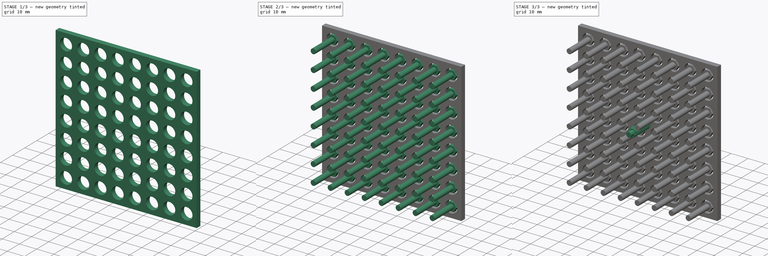
[diagram: build sequence overview — one tinted view per stage of 3, left to right]
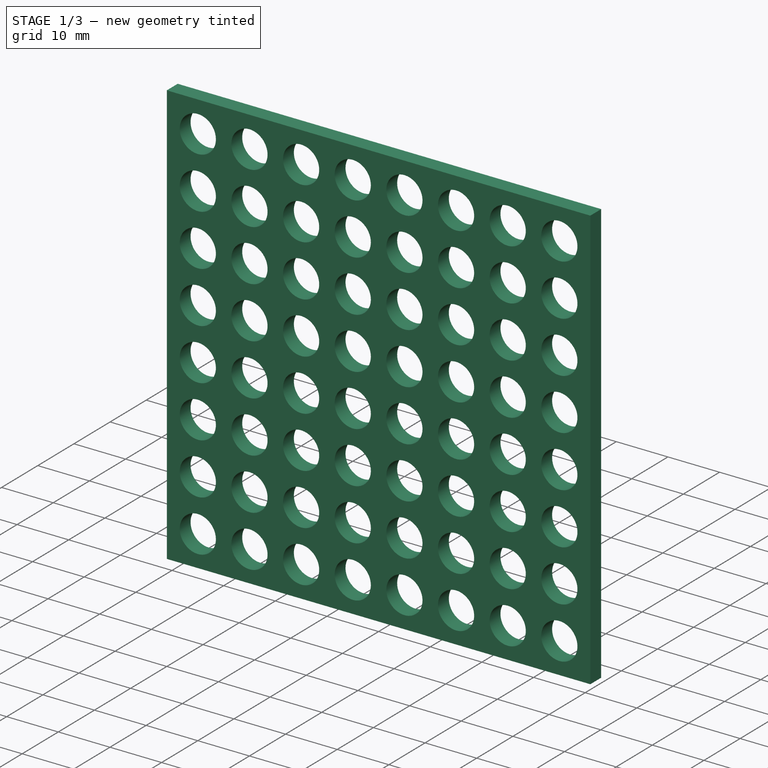
[diagram: stage 1 of 3 — iso view after this stage's code; geometry added in this stage tinted green]
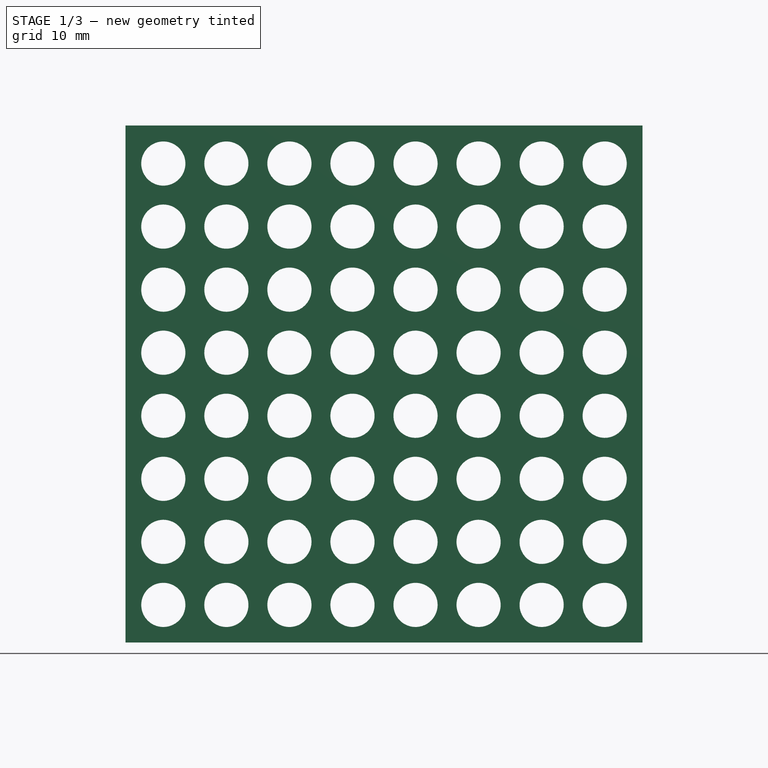
[diagram: stage 1 of 3 — front view after this stage's code; geometry added in this stage tinted green]
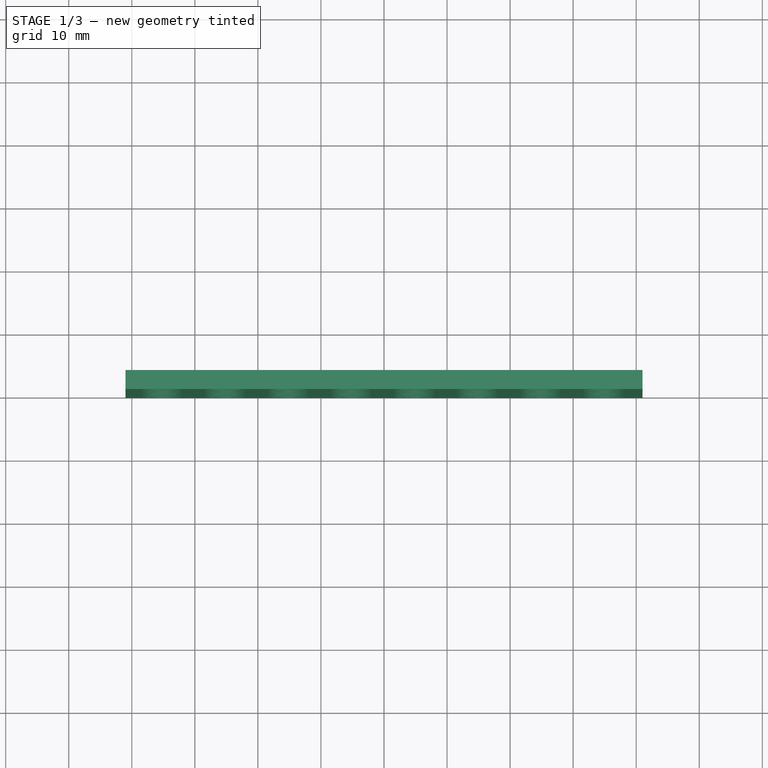
[diagram: stage 1 of 3 — top view after this stage's code; geometry added in this stage tinted green]
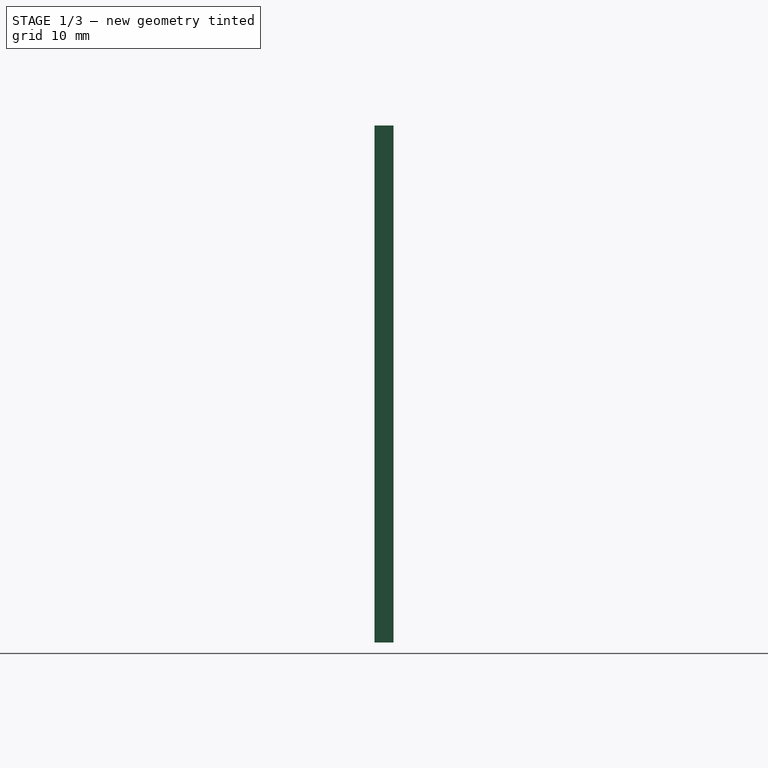
[diagram: stage 1 of 3 — right view after this stage's code; geometry added in this stage tinted green]
FCSTD DOCUMENT  (FreeCAD 0.17R13031 (Git))
Label: estructura
License: CreativeCommons Attribution-ShareAlike
LicenseURL: http://creativecommons.org/licenses/by-sa/4.0/
objects: Sketcher::SketchObject×5, PartDesign::Pad×3, PartDesign::Body×3, App::Part×2, Part::FeaturePython×2, PartDesign::LinearPattern×2, Spreadsheet::Sheet×1, Part::Helix×1, PartDesign::ShapeBinder×1, PartDesign::AdditivePipe×1, PartDesign::Pocket×1, PartDesign::MultiTransform×1
note: 25 computed .brp shape members not serialized (recipe doc carries the construction recipe); baked Part::Feature solids carry a one-line shape summary decoded from their .brp

FEATURE [Sketcher::SketchObject] Sketch003
  MapMode = 5
  Placement = pos=(0,0,0) rot=(1,0,0;1.5708rad)
  Support = -> [XZ_Plane004]
  expr: Constraints[11] = Spreadsheet.matriz_separacion * Spreadsheet.matriz_columnas + 2
  expr: Constraints[10] = Spreadsheet.matriz_separacion * Spreadsheet.matriz_filas + 2
  sketch-geometry (4):
    g0: LineSegment StartX=-41 StartY=41 StartZ=0 EndX=41 EndY=41 EndZ=0
    g1: LineSegment StartX=41 StartY=41 StartZ=0 EndX=41 EndY=-41 EndZ=0
    g2: LineSegment StartX=41 StartY=-41 StartZ=0 EndX=-41 EndY=-41 EndZ=0
    g3: LineSegment StartX=-41 StartY=-41 StartZ=0 EndX=-41 EndY=41 EndZ=0
  constraints (12):
    c: Coincident(g0,g1)
    c: Coincident(g1,g2)
    c: Coincident(g2,g3)
    c: Coincident(g3,g0)
    c: Horizontal(g0)
    c: Horizontal(g2)
    c: Vertical(g1)
    c: Vertical(g3)
    c: Symmetric(g0,g1,g-1)
    c: Symmetric(g0,g0,g-2)
    c: DistanceX(g0,g0) = 82
    c: DistanceY(g3,g3) = 82
FEATURE [PartDesign::Pad] Pad002
  Length = 3
  Length2 = 100
  Placement = pos=(0,0,0) rot=(1,0,0;1.5708rad)
  Profile = -> Sketch003
  Reversed = true
  Type = 0
  expr: Length = Spreadsheet.grosor1
FEATURE [Sketcher::SketchObject] Sketch004
  MapMode = 5
  Placement = pos=(0,0,0) rot=(1,0,0;1.5708rad)
  Support = -> [XZ_Plane004]
  expr: Constraints[1] = -(Spreadsheet.matriz_separacion * (Spreadsheet.matriz_filas - 1)) / 2
  expr: Constraints[0] = Spreadsheet.tornillo_diametro_cabeza / 2 + 1
  sketch-geometry (1):
    g0: Circle CenterX=-35 CenterY=34.963 CenterZ=0 NormalX=0 NormalY=0 NormalZ=1 AngleXU=0 Radius=3.5
  constraints (3):
    c: Radius(g0) = 3.5
    c: DistanceX(g0) = -35
    c: DistanceY(g0) = 34.963
FEATURE [PartDesign::Pocket] Pocket
  BaseFeature = -> Pad002
  Length = 3
  Placement = pos=(0,0,0) rot=(1,0,0;1.5708rad)
  Profile = -> Sketch004
  Type = 0
  expr: Length = Spreadsheet.grosor1
FEATURE [PartDesign::LinearPattern] LinearPattern
  Direction = -> Sketch004 [H_Axis]
  Length = 70
  Occurrences = 8
  Placement = pos=(0,0,0) rot=(1,0,0;1.5708rad)
  expr: Occurrences = Spreadsheet.matriz_filas
  expr: Length = Spreadsheet.matriz_separacion * (Spreadsheet.matriz_filas - 1)
FEATURE [PartDesign::LinearPattern] LinearPattern001
  Direction = -> Z_Axis004
  Length = 70
  Occurrences = 8
  Placement = pos=(0,0,0) rot=(1,0,0;1.5708rad)
  Reversed = true
  expr: Occurrences = Spreadsheet.matriz_columnas
  expr: Length = Spreadsheet.matriz_separacion * (Spreadsheet.matriz_columnas - 1)
FEATURE [PartDesign::MultiTransform] MultiTransform
  Originals = -> [Pocket]
  Placement = pos=(0,0,0) rot=(1,0,0;1.5708rad)
  Transformations = -> [LinearPattern,LinearPattern001]
FEATURE [PartDesign::Body] Body002
  Group = -> [Sketch003,Pad002,Sketch004,Pocket,MultiTransform,LinearPattern,LinearPattern001]
  Origin = -> Origin004
  Tip = -> MultiTransform
FEATURE [App::Part] Part001
  Group = -> [Body002]
  License = CC BY 3.0
  LicenseURL = http://creativecommons.org/licenses/by/3.0/
  Origin = -> Origin003
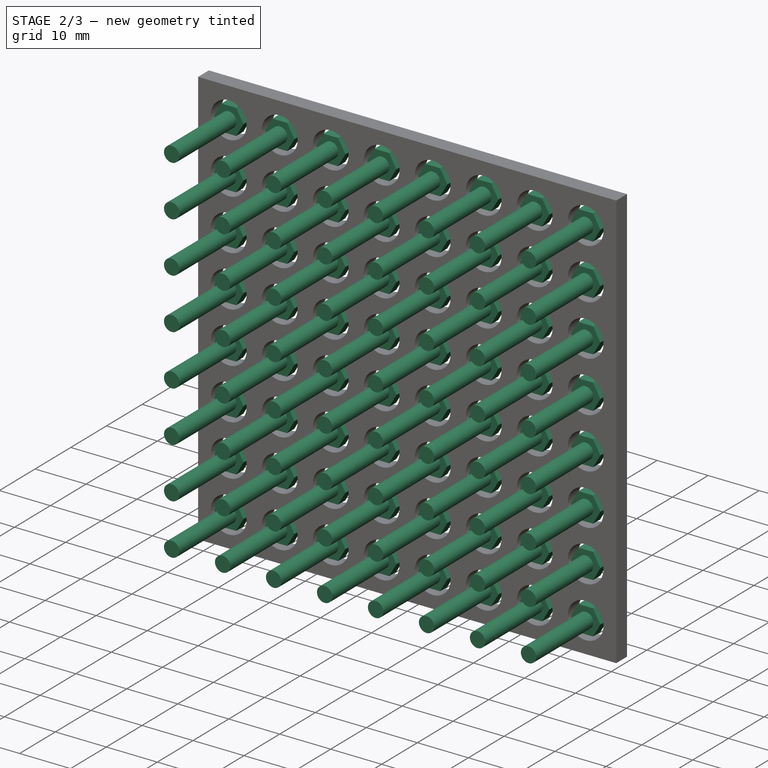
[diagram: stage 2 of 3 — iso view after this stage's code; geometry added in this stage tinted green]
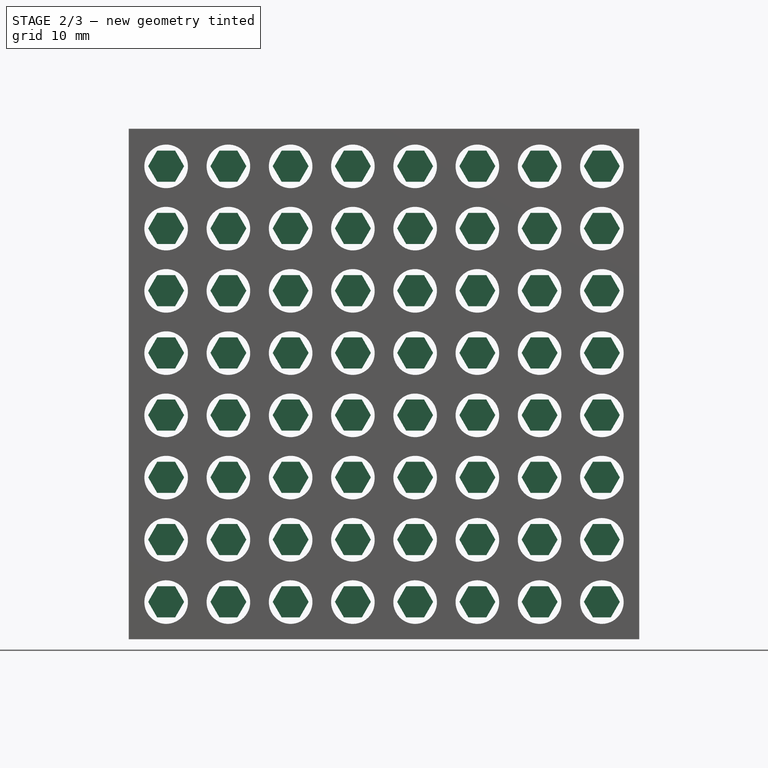
[diagram: stage 2 of 3 — front view after this stage's code; geometry added in this stage tinted green]
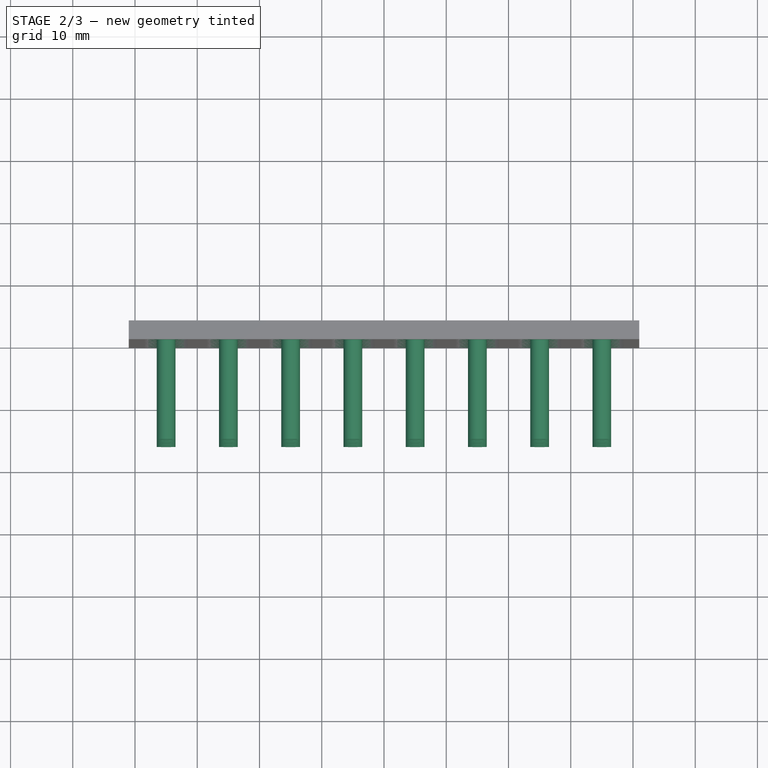
[diagram: stage 2 of 3 — top view after this stage's code; geometry added in this stage tinted green]
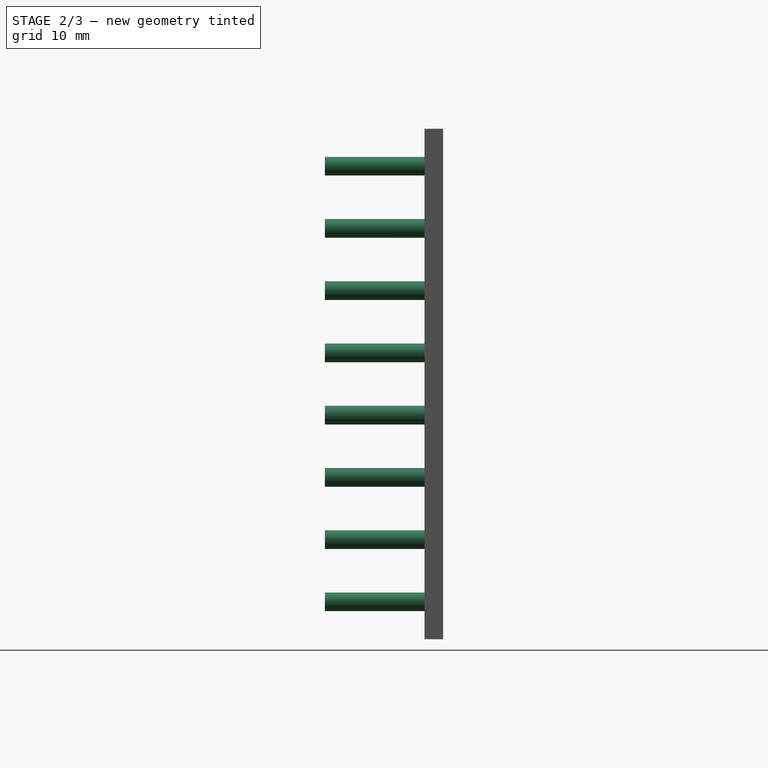
[diagram: stage 2 of 3 — right view after this stage's code; geometry added in this stage tinted green]
FEATURE [PartDesign::Body] Body001  label="Alambre"
  Group = -> [Sketch002,ShapeBinder,AdditivePipe]
  Origin = -> Origin002
  Tip = -> AdditivePipe
FEATURE [App::Part] Part  label="Bobina"
  Group = -> [Body,Body001,Helix002]
  License = CC BY 3.0
  LicenseURL = http://creativecommons.org/licenses/by/3.0/
  Origin = -> Origin
FEATURE [Part::FeaturePython] Array  # Draft array (typed FeaturePython)
  Angle = 360
  ArrayType = 0
  Axis = (0,0,1)
  Center = (0,0,0)
  Fuse = false
  IntervalAxis = (0,0,0)
  IntervalX = (10,0,0)
  IntervalY = (0,10,0)
  IntervalZ = (0,0,10)
  NumberPolar = 1
  NumberX = 8
  NumberY = 1
  NumberZ = 8
  Placement = pos=(-35,0,-35) rot=(0,0,1;0rad)
  expr: Placement.Base.z = -Spreadsheet.matriz_separacion * (Spreadsheet.matriz_columnas - 1) / 2
  expr: NumberZ = Spreadsheet.matriz_columnas
  expr: NumberX = Spreadsheet.matriz_filas
  expr: Placement.Base.x = -Spreadsheet.matriz_separacion * (Spreadsheet.matriz_filas - 1) / 2
  expr: IntervalZ.z = Spreadsheet.matriz_separacion
  expr: IntervalY.y = Spreadsheet.matriz_separacion
  expr: IntervalX.x = Spreadsheet.matriz_separacion
FEATURE [Part::FeaturePython] Array001  # Draft array (typed FeaturePython)
  Angle = 360
  ArrayType = 0
  Axis = (0,0,1)
  Center = (0,0,0)
  Fuse = false
  IntervalAxis = (0,0,0)
  IntervalX = (10,0,0)
  IntervalY = (0,1,0)
  IntervalZ = (0,0,10)
  NumberPolar = 1
  NumberX = 8
  NumberY = 1
  NumberZ = 8
  Placement = pos=(-35,0,-35) rot=(0,0,1;0rad)
  expr: Placement.Base.z = Array.Placement.Base.z
  expr: IntervalX.x = Spreadsheet.matriz_separacion
  expr: Placement.Base.x = Array.Placement.Base.x
  expr: IntervalZ.z = Spreadsheet.matriz_separacion
  expr: NumberZ = Spreadsheet.matriz_columnas
  expr: NumberX = Spreadsheet.matriz_filas
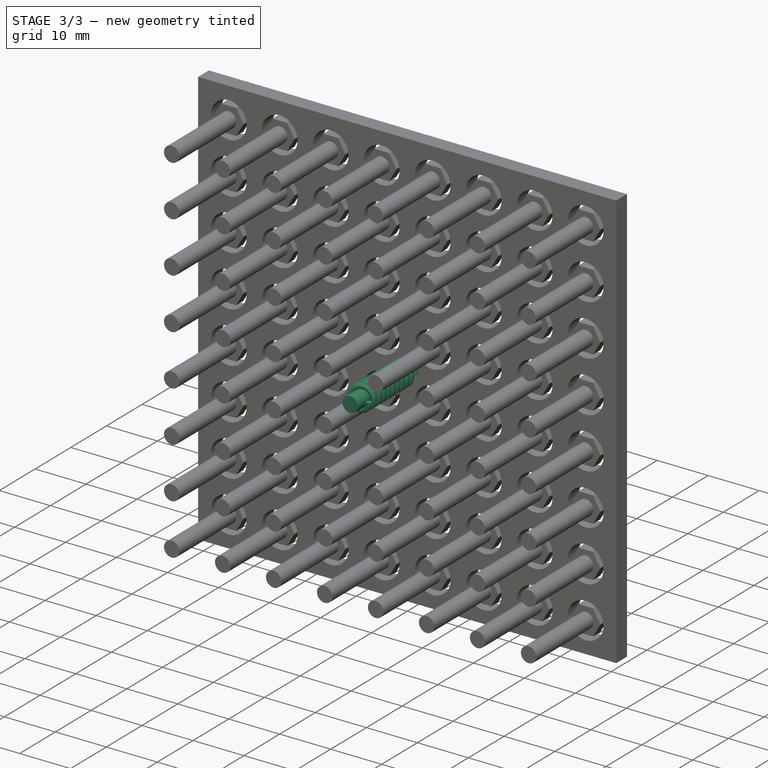
[diagram: stage 3 of 3 — iso view after this stage's code; geometry added in this stage tinted green]
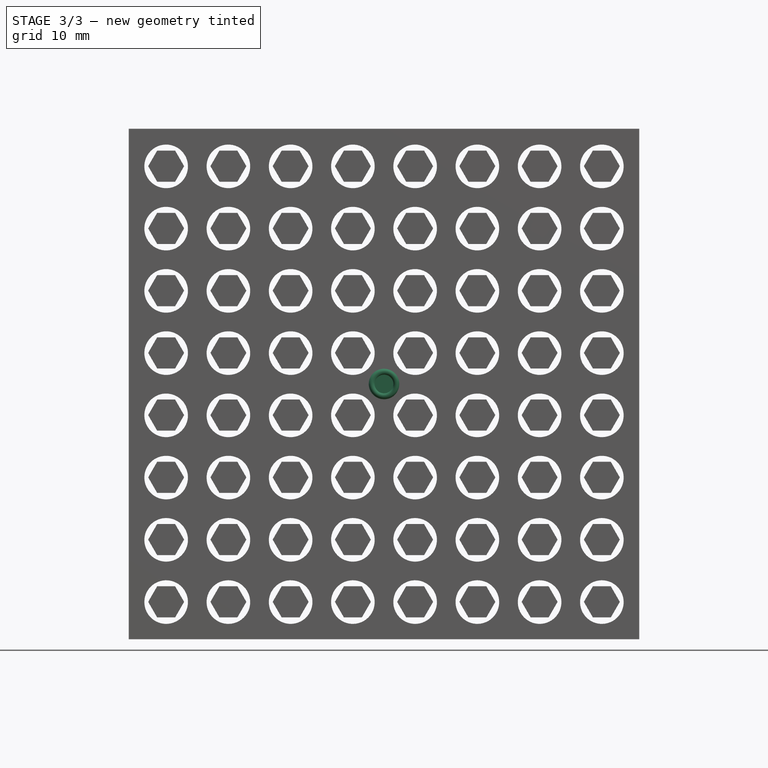
[diagram: stage 3 of 3 — front view after this stage's code; geometry added in this stage tinted green]
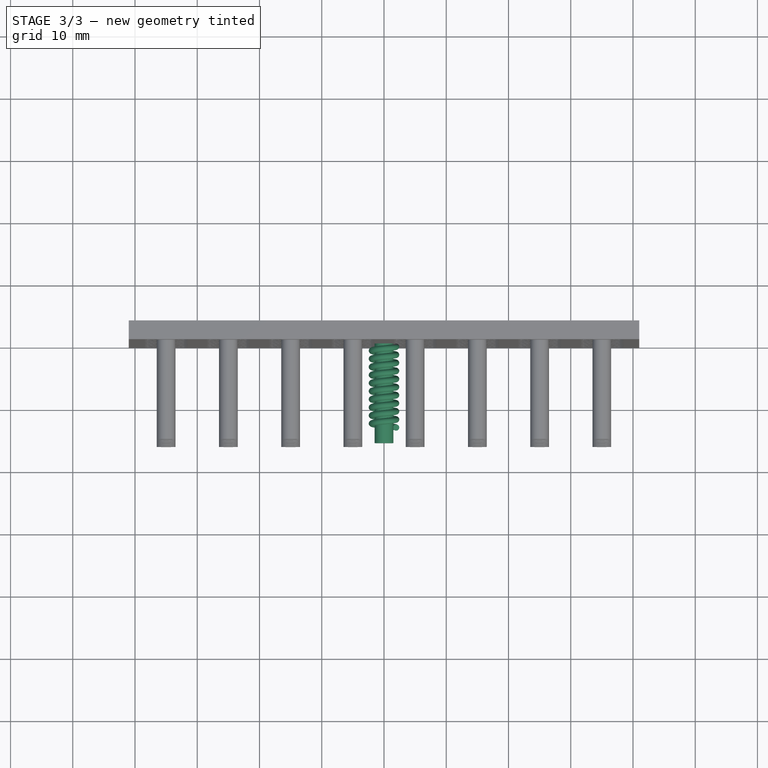
[diagram: stage 3 of 3 — top view after this stage's code; geometry added in this stage tinted green]
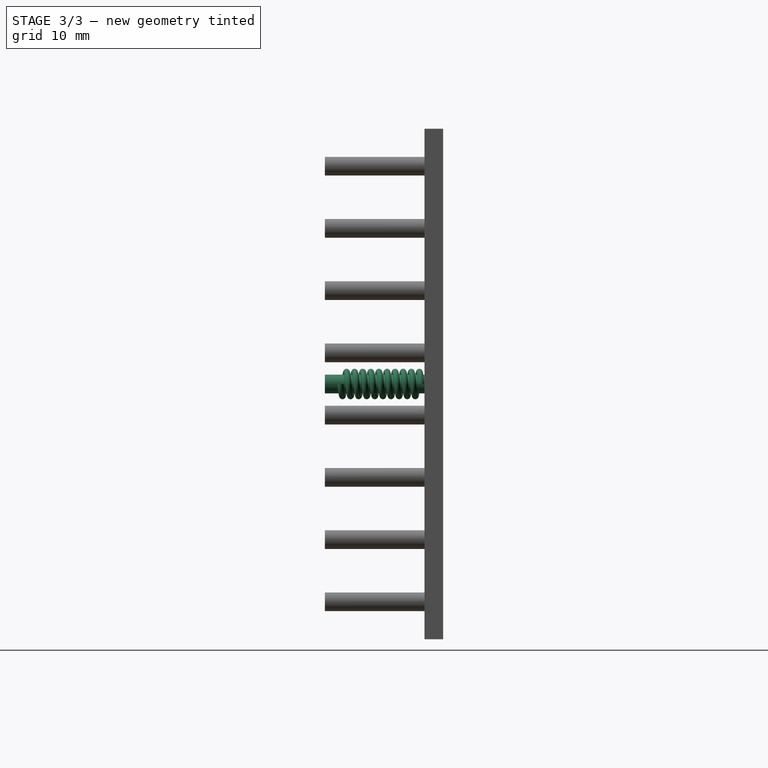
[diagram: stage 3 of 3 — right view after this stage's code; geometry added in this stage tinted green]
FEATURE [Spreadsheet::Sheet] Spreadsheet
  cells = A1=Matriz; A2=Filas; B2(matriz_filas)=8; A3=Columnas; B3(matriz_columnas)=8; A4=Separacion(mm); B4(matriz_separacion)=10; A6=Tornillo; A7=Largo; B7(tornillo_largo)=16; A8=Diametro; B8(tornillo_diametro)=3; A9=Diametro cabeza; B9(tornillo_diametro_cabeza)=5; A11=Material; A12=Grosor; B12(grosor1)=3; A14=Alambre; A15=Grosor; B15(alambre_grosor)=1; A16=Vueltas; B16(alambre_vueltas)=10
FEATURE [Sketcher::SketchObject] Sketch
  MapMode = 5
  Placement = pos=(0,0,0) rot=(1,0,0;1.5708rad)
  Support = -> [XZ_Plane001]
  expr: Constraints[19] = Spreadsheet.tornillo_diametro_cabeza / 2
  sketch-geometry (7):
    g0: LineSegment StartX=1.44338 StartY=2.5 StartZ=0 EndX=-1.44338 EndY=2.5 EndZ=0
    g1: LineSegment StartX=-1.44338 StartY=2.5 StartZ=0 EndX=-2.88675 EndY=0 EndZ=0
    g2: LineSegment StartX=-2.88675 StartY=0 StartZ=0 EndX=-1.44338 EndY=-2.5 EndZ=0
    g3: LineSegment StartX=-1.44338 StartY=-2.5 StartZ=0 EndX=1.44338 EndY=-2.5 EndZ=0
    g4: LineSegment StartX=1.44338 StartY=-2.5 StartZ=0 EndX=2.88675 EndY=0 EndZ=0
    g5: LineSegment StartX=2.88675 StartY=0 StartZ=0 EndX=1.44338 EndY=2.5 EndZ=0
    g6: Circle [constr] CenterX=0 CenterY=0 CenterZ=0 NormalX=0 NormalY=0 NormalZ=1 AngleXU=0 Radius=2.88675
  constraints (16):
    c: Coincident(g0,g1)
    c: Coincident(g1,g2)
    c: Coincident(g2,g3)
    c: Coincident(g3,g4)
    c: Coincident(g4,g5)
    c: Coincident(g5,g0)
    c: Equal(g0, g1-g5) x5
    c: PointOnObject(g0,g6)
    c: PointOnObject(g1,g6)
    c: PointOnObject(g2,g6)
    c: PointOnObject(g3,g6)
    c: PointOnObject(g4,g6)
    c: PointOnObject(g5,g6)
    c: Coincident(g6,g-1)
    c: Horizontal(g0)
    c: DistanceY(g0) = 2.5
FEATURE [PartDesign::Pad] Pad
  Length = 2
  Length2 = 100
  Placement = pos=(0,0,0) rot=(1,0,0;1.5708rad)
  Profile = -> Sketch
  Reversed = true
  Type = 0
FEATURE [Sketcher::SketchObject] Sketch001
  MapMode = 5
  Placement = pos=(0,0,0) rot=(1,0,0;1.5708rad)
  Support = -> [XZ_Plane001]
  expr: Constraints[1] = Spreadsheet.tornillo_diametro / 2
  sketch-geometry (1):
    g0: Circle CenterX=0 CenterY=0 CenterZ=0 NormalX=0 NormalY=0 NormalZ=1 AngleXU=0 Radius=1.5
  constraints (2):
    c: Coincident(g0,g-1)
    c: Radius(g0) = 1.5
FEATURE [PartDesign::Pad] Pad001
  BaseFeature = -> Pad
  Length = 16
  Length2 = 100
  Placement = pos=(0,0,0) rot=(1,0,0;1.5708rad)
  Profile = -> Sketch001
  Type = 0
  expr: Length = Spreadsheet.tornillo_largo
FEATURE [PartDesign::Body] Body  label="Tornillo"
  Group = -> [Sketch,Pad,Sketch001,Pad001]
  Origin = -> Origin001
  Tip = -> Pad001
FEATURE [Sketcher::SketchObject] Sketch002
  MapMode = 5
  Support = -> [XY_Plane002]
  expr: Constraints[2] = Spreadsheet.tornillo_diametro / 2 + Spreadsheet.alambre_grosor / 2 - 0.050000000000000003
  expr: Constraints[0] = Spreadsheet.alambre_grosor / 2
  sketch-geometry (1):
    g0: Circle CenterX=1.95 CenterY=-0.5 CenterZ=0 NormalX=0 NormalY=0 NormalZ=1 AngleXU=0 Radius=0.5
  constraints (3):
    c: Radius(g0) = 0.5
    c: Tangent(g0,g-1)
    c: DistanceX(g0) = 1.95
FEATURE [Part::Helix] Helix002
  Angle = 0
  AttacherType = Attacher::AttachEngine3D
  Height = 13
  LocalCoord = 0
  Pitch = 1.3
  Placement = pos=(0,-0.5,0) rot=(1,0,0;1.5708rad)
  Radius = 1.95
  Style = 1
  expr: Pitch = (Spreadsheet.tornillo_largo - 3) / Spreadsheet.alambre_vueltas
  expr: Radius = Spreadsheet.tornillo_diametro / 2 + Spreadsheet.alambre_grosor / 2 - 0.050000000000000003
  expr: Placement.Base.y = -Spreadsheet.alambre_grosor / 2
  expr: Height = Spreadsheet.tornillo_largo - 3
FEATURE [PartDesign::ShapeBinder] ShapeBinder
  Placement = pos=(0,-0.5,0) rot=(1,0,0;1.5708rad)
  Support = -> [Helix002]
FEATURE [PartDesign::AdditivePipe] AdditivePipe
  AuxilleryCurvelinear = true
  AuxillerySpineTangent = false
  Binormal = (0,0,0)
  Mode = 2
  Profile = -> Sketch002
  Spine = -> ShapeBinder
  SpineTangent = false
  Transformation = 0
  Transition = 0
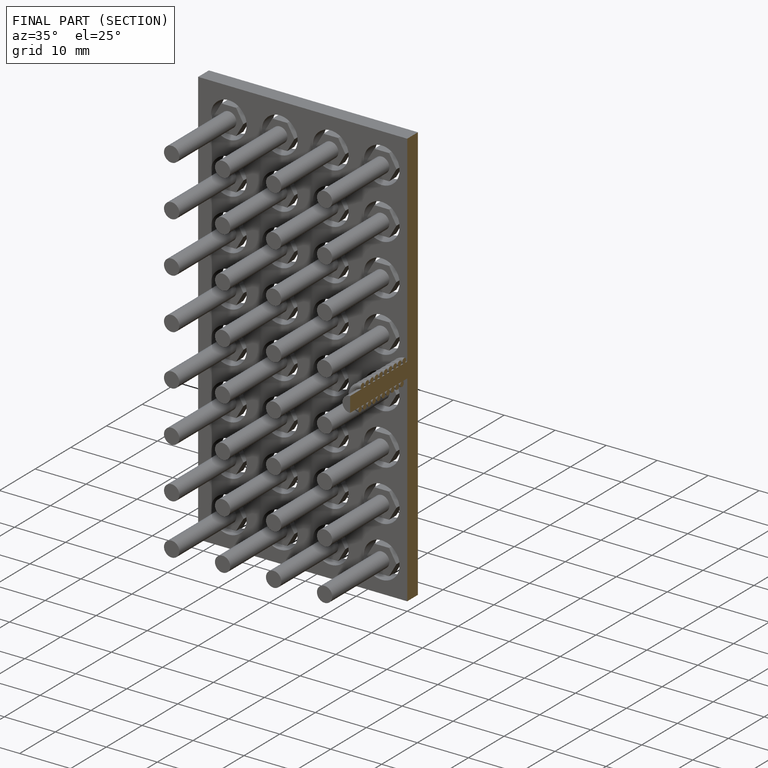
[diagram: finished part — half-section view (interior)]
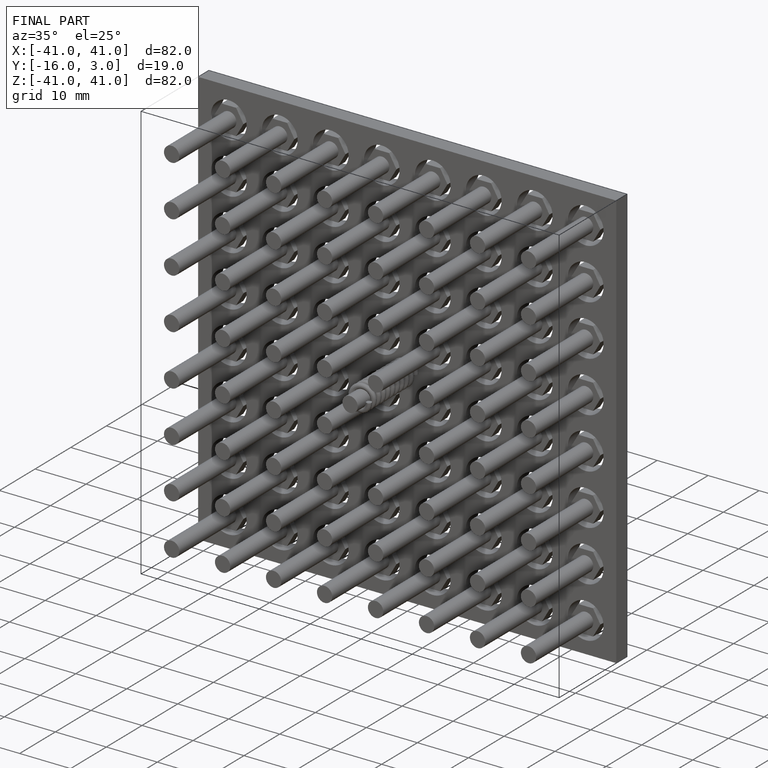
[diagram: finished part — iso view with bounding-box wireframe]
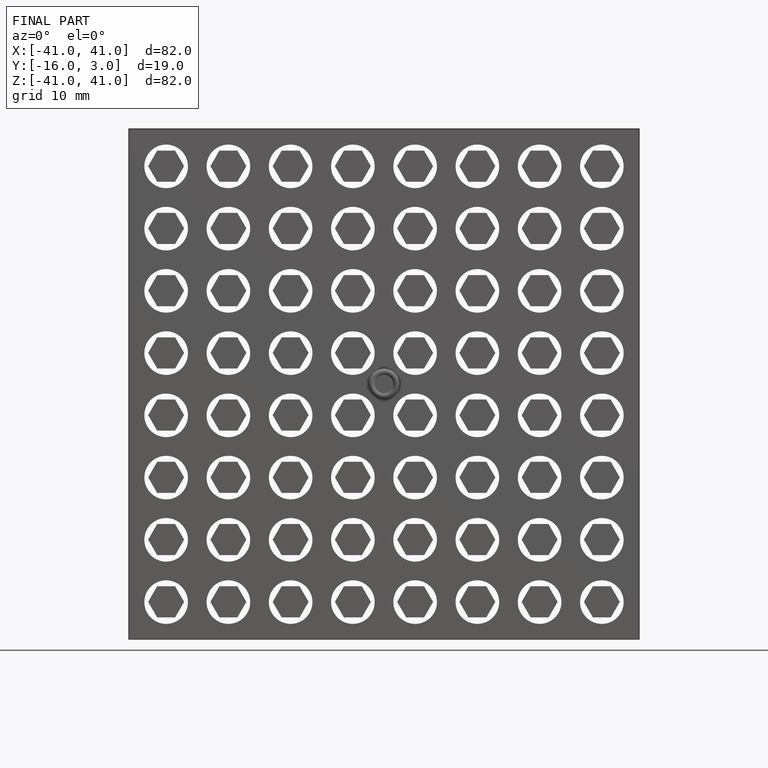
[diagram: finished part — front view with bounding-box wireframe]
